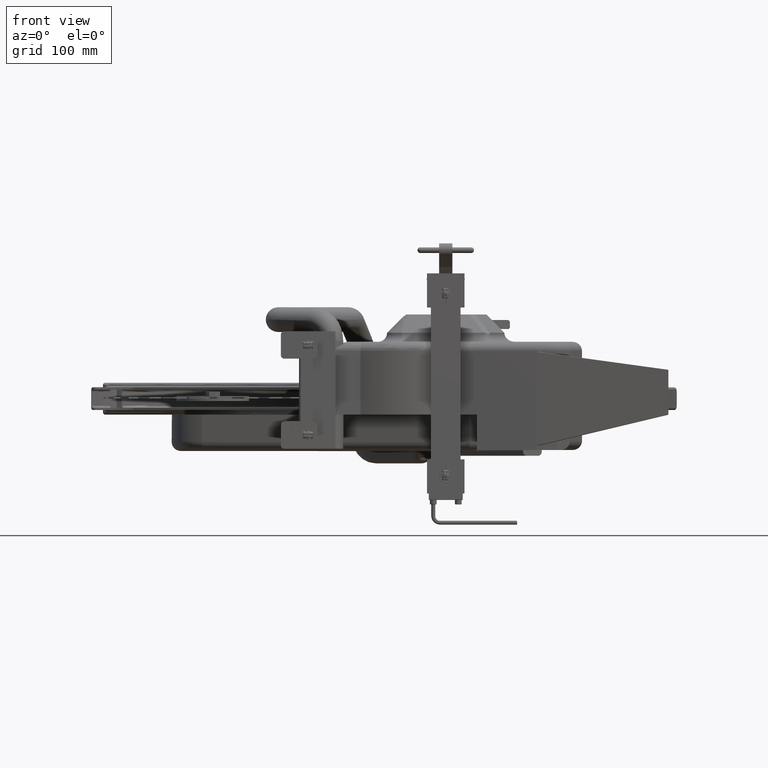
[diagram: clean part render]
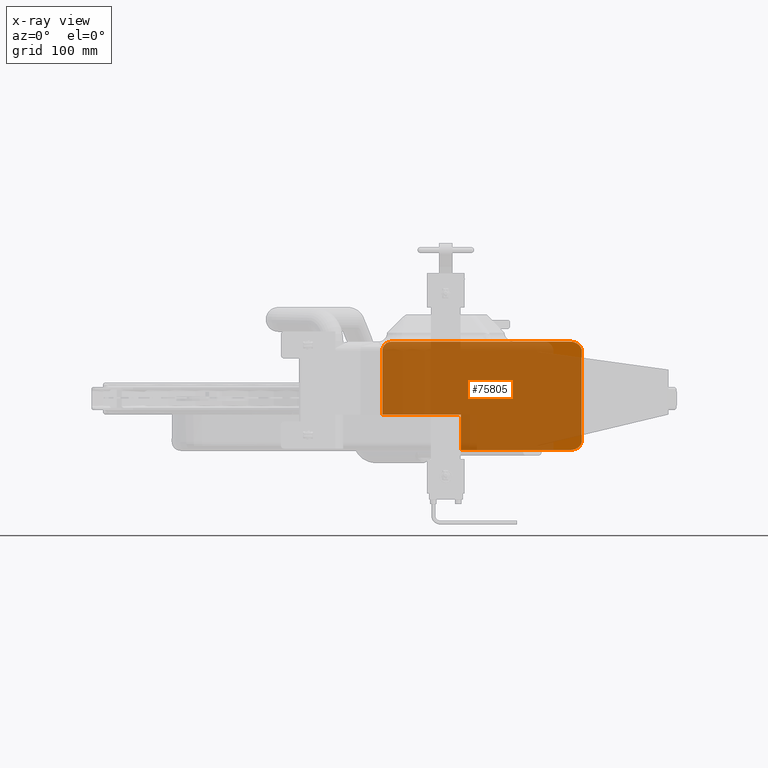
[diagram: x-ray — body ghosted, one internal face saturated and labeled with its STEP entity id]
A machine part, front view, then the same camera in x-ray: the body is ghosted and one INTERNAL B-rep face — a face not visible from any outside direction — is saturated and labeled: STEP entity #75805.
In plain terms, the highlighted planar face has unit normal (0.215, 0.9766, 0).
Its self-contained STEP definition (entity closure, byte-faithful):
#300 = DIRECTION ( 'NONE',  ( 0.0000000000000000000, 0.0000000000000000000, 1.000000000000000000 ) ) ;
#3399 = ORIENTED_EDGE ( 'NONE', *, *, #50090, .T. ) ;
#4011 = LINE ( 'NONE', #45886, #20441 ) ;
#8625 = EDGE_CURVE ( 'NONE', #20553, #62327, #4011, .T. ) ;
#9374 = EDGE_CURVE ( 'NONE', #9984, #47213, #50984, .T. ) ;
#9984 = VERTEX_POINT ( 'NONE', #48507 ) ;
#11513 = CARTESIAN_POINT ( 'NONE',  ( 20.28301590943973300, -0.5509468091793744400, 2.917893218813452100 ) ) ;
#11889 = LINE ( 'NONE', #35104, #84169 ) ;
#12327 = VECTOR ( 'NONE', #63135, 39.37007874015748100 ) ;
#12616 = CARTESIAN_POINT ( 'NONE',  ( 19.65382636399881400, -0.4124454591650556500, 3.125000000000000900 ) ) ;
#13403 = PLANE ( 'NONE',  #71163 ) ;
#13975 = CARTESIAN_POINT ( 'NONE',  ( 19.65382636399881000, -0.4124454591650545400, -2.825000000000000600 ) ) ;
#17293 = CARTESIAN_POINT ( 'NONE',  ( 9.325216043083807800, 1.861156325200383500, -0.8750000000000001100 ) ) ;
#19517 = VECTOR ( 'NONE', #300, 39.37007874015748100 ) ;
#20391 = DIRECTION ( 'NONE',  ( 0.2149797051404897500, 0.9766185162988197900, 0.0000000000000000000 ) ) ;
#20441 = VECTOR ( 'NONE', #38542, 39.37007874015748100 ) ;
#20553 = VERTEX_POINT ( 'NONE', #41029 ) ;
#21802 = VERTEX_POINT ( 'NONE', #32724 ) ;
#21821 = LINE ( 'NONE', #66098, #73323 ) ;
#25027 = DIRECTION ( 'NONE',  ( -0.2149797051404897200, -0.9766185162988197900, -0.0000000000000000000 ) ) ;
#25565 = CARTESIAN_POINT ( 'NONE',  ( 20.02239706641474000, -0.4935776715964604900, 3.125000000000000000 ) ) ;
#28737 = DIRECTION ( 'NONE',  ( -0.9766185162988196800, 0.2149797051404897200, 0.0000000000000000000 ) ) ;
#29300 = CARTESIAN_POINT ( 'NONE',  ( 20.28301590943973000, -0.5509468091793731100, -2.324999999999999700 ) ) ;
#31144 = EDGE_CURVE ( 'NONE', #21802, #56598, #49430, .T. ) ;
#32724 = CARTESIAN_POINT ( 'NONE',  ( 9.813525301233218200, 1.753666472630141000, 3.125000000000000900 ) ) ;
#34748 = CARTESIAN_POINT ( 'NONE',  ( 20.02239706641474000, -0.4935776715964594900, -2.825000000000000600 ) ) ;
#35104 = CARTESIAN_POINT ( 'NONE',  ( 11.48973625057238500, 1.384687869799783800, -0.8750000000000001100 ) ) ;
#36763 = VECTOR ( 'NONE', #28737, 39.37007874015748100 ) ;
#38133 = LINE ( 'NONE', #84142, #19517 ) ;
#38542 = DIRECTION ( 'NONE',  ( 0.0000000000000000000, 0.0000000000000000000, -1.000000000000000000 ) ) ;
#38624 = VERTEX_POINT ( 'NONE', #12616 ) ;
#40675 = CARTESIAN_POINT ( 'NONE',  ( 20.28301590943973000, -0.5509468091793731100, -2.324999999999999700 ) ) ;
#41029 = CARTESIAN_POINT ( 'NONE',  ( 20.28301590943973000, -0.5509468091793738900, 2.625000000000000000 ) ) ;
#42072 = CARTESIAN_POINT ( 'NONE',  ( 9.325216043083809600, 1.861156325200386400, 2.625000000000000000 ) ) ;
#42165 = EDGE_CURVE ( 'NONE', #47213, #88942, #68133, .T. ) ;
#45195 = EDGE_CURVE ( 'NONE', #50281, #88942, #11889, .T. ) ;
#45744 =( BOUNDED_CURVE ( )  B_SPLINE_CURVE ( 3, ( #13975, #34748, #71203, #29300 ),
 .UNSPECIFIED., .F., .F. ) 
 B_SPLINE_CURVE_WITH_KNOTS ( ( 4, 4 ),
 ( 4.712388980384689700, 6.283185307179587100 ),
 .UNSPECIFIED. ) 
 CURVE ( )  GEOMETRIC_REPRESENTATION_ITEM ( )  RATIONAL_B_SPLINE_CURVE ( ( 1.000000000000000000, 0.8047378541243648300, 0.8047378541243648300, 1.000000000000000000 ) ) 
 REPRESENTATION_ITEM ( '' )  );
#45886 = CARTESIAN_POINT ( 'NONE',  ( 20.28301590943973000, -0.5509468091793742200, 3.125000000000000900 ) ) ;
#47213 = VERTEX_POINT ( 'NONE', #56400 ) ;
#47340 = CARTESIAN_POINT ( 'NONE',  ( 0.8217323892084419400, 3.732999197384632600, 0.0000000000000000000 ) ) ;
#48507 = CARTESIAN_POINT ( 'NONE',  ( 19.65382636399881000, -0.4124454591650545400, -2.825000000000000600 ) ) ;
#49076 = CARTESIAN_POINT ( 'NONE',  ( 13.63631093738749400, 0.9121697006968407800, -2.825000000000000600 ) ) ;
#49430 = CIRCLE ( 'NONE', #83647, 0.5000000000000004400 ) ;
#50038 = ORIENTED_EDGE ( 'NONE', *, *, #62423, .F. ) ;
#50090 = EDGE_CURVE ( 'NONE', #9984, #62327, #45744, .T. ) ;
#50136 = ORIENTED_EDGE ( 'NONE', *, *, #31144, .T. ) ;
#50281 = VERTEX_POINT ( 'NONE', #17293 ) ;
#50984 = LINE ( 'NONE', #77675, #36763 ) ;
#54559 = ORIENTED_EDGE ( 'NONE', *, *, #8625, .F. ) ;
#55077 = FACE_OUTER_BOUND ( 'NONE', #62510, .T. ) ;
#56352 = EDGE_CURVE ( 'NONE', #20553, #38624, #65444, .T. ) ;
#56400 = CARTESIAN_POINT ( 'NONE',  ( 13.63631093738749400, 0.9121697006968407800, -2.825000000000000600 ) ) ;
#56598 = VERTEX_POINT ( 'NONE', #42072 ) ;
#59096 = DIRECTION ( 'NONE',  ( 0.9766185162988196800, -0.2149797051404897200, 0.0000000000000000000 ) ) ;
#61513 = ORIENTED_EDGE ( 'NONE', *, *, #42165, .F. ) ;
#62327 = VERTEX_POINT ( 'NONE', #40675 ) ;
#62423 = EDGE_CURVE ( 'NONE', #50281, #56598, #38133, .T. ) ;
#62510 = EDGE_LOOP ( 'NONE', ( #69328, #61513, #68114, #3399, #54559, #69731, #69115, #50136, #50038 ) ) ;
#62654 = DIRECTION ( 'NONE',  ( 0.9766185162988196800, -0.2149797051404897200, 0.0000000000000000000 ) ) ;
#63135 = DIRECTION ( 'NONE',  ( 0.0000000000000000000, 0.0000000000000000000, 1.000000000000000000 ) ) ;
#65444 =( BOUNDED_CURVE ( )  B_SPLINE_CURVE ( 3, ( #87449, #11513, #25565, #74561 ),
 .UNSPECIFIED., .F., .F. ) 
 B_SPLINE_CURVE_WITH_KNOTS ( ( 4, 4 ),
 ( 3.141592653589793100, 4.712388980384689700 ),
 .UNSPECIFIED. ) 
 CURVE ( )  GEOMETRIC_REPRESENTATION_ITEM ( )  RATIONAL_B_SPLINE_CURVE ( ( 1.000000000000000000, 0.8047378541243649400, 0.8047378541243649400, 1.000000000000000000 ) ) 
 REPRESENTATION_ITEM ( '' )  );
#66098 = CARTESIAN_POINT ( 'NONE',  ( 11.48973625057238500, 1.384687869799783800, 3.125000000000000900 ) ) ;
#66932 = CARTESIAN_POINT ( 'NONE',  ( 9.813525301233218200, 1.753666472630141000, 2.625000000000000000 ) ) ;
#68114 = ORIENTED_EDGE ( 'NONE', *, *, #9374, .F. ) ;
#68133 = LINE ( 'NONE', #49076, #12327 ) ;
#69115 = ORIENTED_EDGE ( 'NONE', *, *, #79665, .F. ) ;
#69328 = ORIENTED_EDGE ( 'NONE', *, *, #45195, .T. ) ;
#69349 = DIRECTION ( 'NONE',  ( -0.9766185162988196800, 0.2149797051404897200, 0.0000000000000000000 ) ) ;
#69731 = ORIENTED_EDGE ( 'NONE', *, *, #56352, .T. ) ;
#71163 = AXIS2_PLACEMENT_3D ( 'NONE', #47340, #20391, #69349 ) ;
#71203 = CARTESIAN_POINT ( 'NONE',  ( 20.28301590943973000, -0.5509468091793734400, -2.617893218813452700 ) ) ;
#73323 = VECTOR ( 'NONE', #59096, 39.37007874015748100 ) ;
#74019 = DIRECTION ( 'NONE',  ( -0.9766185162988199100, 0.2149797051404894200, 0.0000000000000000000 ) ) ;
#74561 = CARTESIAN_POINT ( 'NONE',  ( 19.65382636399881400, -0.4124454591650556500, 3.125000000000000900 ) ) ;
#75805 = ADVANCED_FACE ( 'NONE', ( #55077 ), #13403, .F. ) ;
#77675 = CARTESIAN_POINT ( 'NONE',  ( 19.62729478618922100, -0.4066051533760220400, -2.825000000000000600 ) ) ;
#79665 = EDGE_CURVE ( 'NONE', #21802, #38624, #21821, .T. ) ;
#83647 = AXIS2_PLACEMENT_3D ( 'NONE', #66932, #25027, #74019 ) ;
#84142 = CARTESIAN_POINT ( 'NONE',  ( 9.325216043083809600, 1.861156325200385800, 3.125000000000000900 ) ) ;
#84169 = VECTOR ( 'NONE', #62654, 39.37007874015748100 ) ;
#86871 = CARTESIAN_POINT ( 'NONE',  ( 13.63631093738749400, 0.9121697006968407800, -0.8750000000000001100 ) ) ;
#87449 = CARTESIAN_POINT ( 'NONE',  ( 20.28301590943973000, -0.5509468091793738900, 2.625000000000000000 ) ) ;
#88942 = VERTEX_POINT ( 'NONE', #86871 ) ;